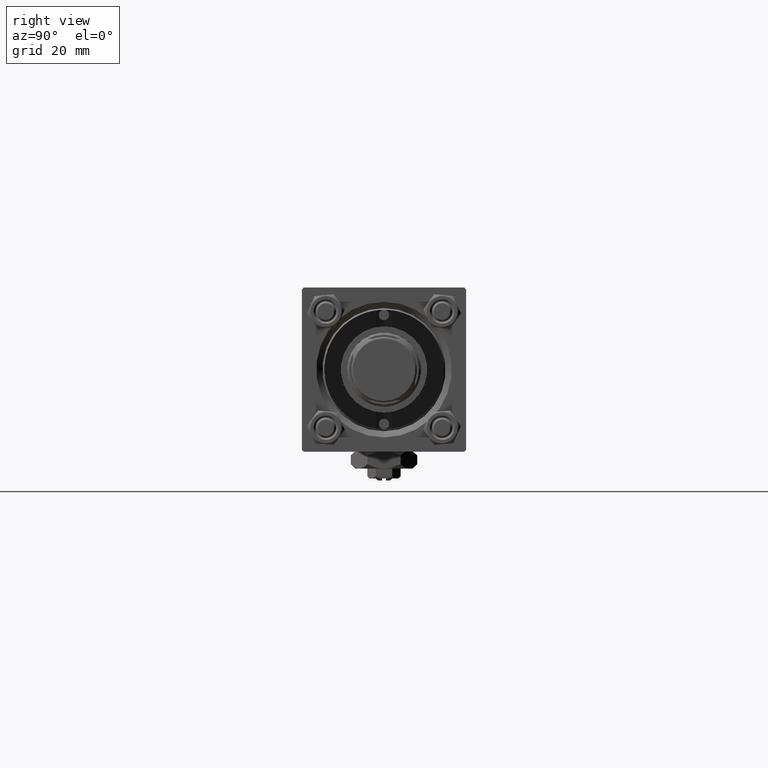
[diagram: clean part render]
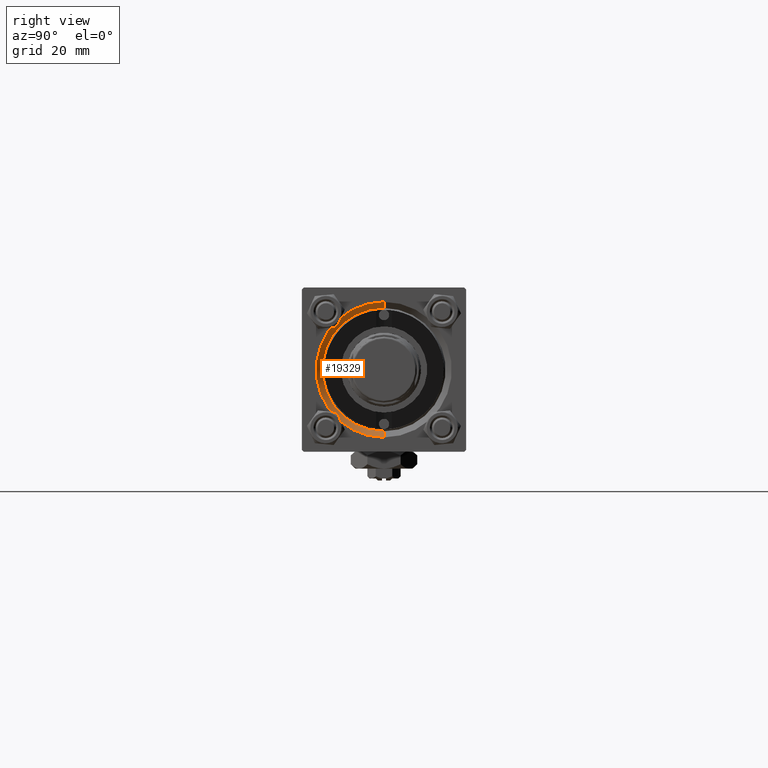
[diagram: same view with one face highlighted and labeled with its STEP entity id]
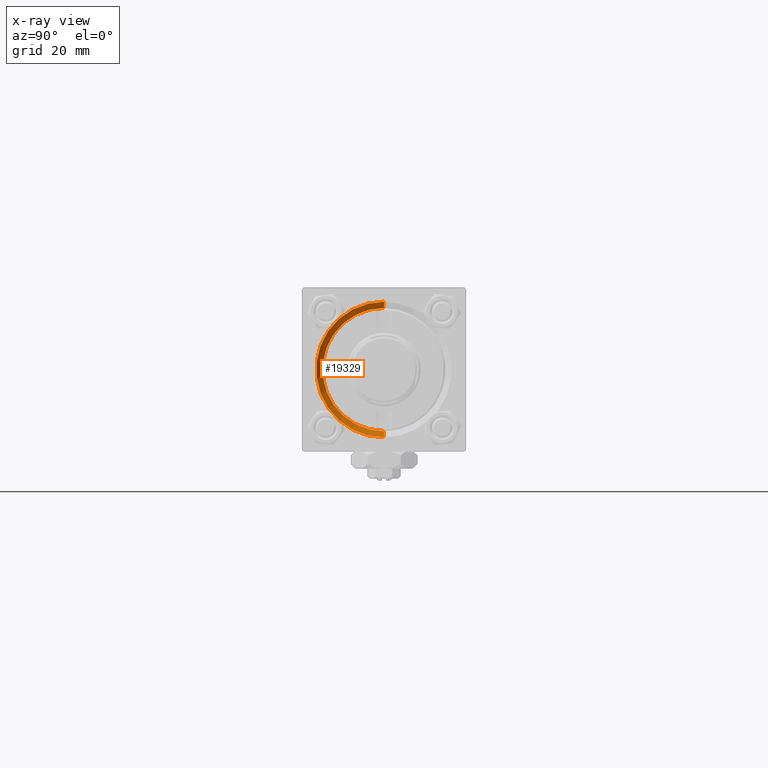
[diagram: x-ray of the same camera — body ghosted, the highlighted face saturated]
A machine part, right view. The second image highlights one B-rep face of the part: STEP entity #19329.
The next image is the same camera in x-ray: the body ghosted, the highlighted face saturated — about 0% of this face is hidden behind the body in this view.
In plain terms, the highlighted conical surface has half-angle 45 deg.
Its self-contained STEP definition (entity closure, byte-faithful):
#320 = VECTOR ( 'NONE', #49829, 1000.000000000000114 ) ;
#390 = DIRECTION ( 'NONE',  ( 0.000000000000000000, 0.000000000000000000, -1.000000000000000000 ) ) ;
#1395 = AXIS2_PLACEMENT_3D ( 'NONE', #11449, #38546, #10943 ) ;
#1450 = ORIENTED_EDGE ( 'NONE', *, *, #29486, .F. ) ;
#2423 = EDGE_CURVE ( 'NONE', #51019, #18339, #17730, .T. ) ;
#5670 = CARTESIAN_POINT ( 'NONE',  ( 117.5000000000000000, 0.000000000000000000, -15.00000000000000000 ) ) ;
#6304 = VECTOR ( 'NONE', #26192, 1000.000000000000114 ) ;
#7715 = ORIENTED_EDGE ( 'NONE', *, *, #33352, .F. ) ;
#8776 = CARTESIAN_POINT ( 'NONE',  ( 117.5000000000000000, 0.000000000000000000, 0.000000000000000000 ) ) ;
#10943 = DIRECTION ( 'NONE',  ( 0.000000000000000000, 0.000000000000000000, 1.000000000000000000 ) ) ;
#11449 = CARTESIAN_POINT ( 'NONE',  ( 117.5000000000000000, 0.000000000000000000, 0.000000000000000000 ) ) ;
#12484 = ORIENTED_EDGE ( 'NONE', *, *, #23657, .F. ) ;
#12881 = AXIS2_PLACEMENT_3D ( 'NONE', #25872, #46370, #22700 ) ;
#13237 = CARTESIAN_POINT ( 'NONE',  ( 119.0000000000000142, 0.000000000000000000, -16.50000000000001421 ) ) ;
#13293 = ORIENTED_EDGE ( 'NONE', *, *, #2423, .T. ) ;
#13518 = FACE_OUTER_BOUND ( 'NONE', #24551, .T. ) ;
#14338 = CARTESIAN_POINT ( 'NONE',  ( 117.5000000000000000, 0.000000000000000000, -15.00000000000000000 ) ) ;
#15361 = LINE ( 'NONE', #14338, #6304 ) ;
#15633 = CIRCLE ( 'NONE', #1395, 15.00000000000000000 ) ;
#17730 = LINE ( 'NONE', #33771, #320 ) ;
#18339 = VERTEX_POINT ( 'NONE', #40856 ) ;
#19329 = ADVANCED_FACE ( 'NONE', ( #13518 ), #49451, .F. ) ;
#21679 = DIRECTION ( 'NONE',  ( 1.000000000000000000, 0.000000000000000000, 0.000000000000000000 ) ) ;
#22700 = DIRECTION ( 'NONE',  ( 0.000000000000000000, 0.000000000000000000, 1.000000000000000000 ) ) ;
#23657 = EDGE_CURVE ( 'NONE', #26877, #18339, #48212, .T. ) ;
#24551 = EDGE_LOOP ( 'NONE', ( #7715, #13293, #12484, #1450 ) ) ;
#25872 = CARTESIAN_POINT ( 'NONE',  ( 119.0000000000000142, 0.000000000000000000, 0.000000000000000000 ) ) ;
#26192 = DIRECTION ( 'NONE',  ( 0.7071067811865474617, 0.000000000000000000, -0.7071067811865474617 ) ) ;
#26877 = VERTEX_POINT ( 'NONE', #13237 ) ;
#29486 = EDGE_CURVE ( 'NONE', #49952, #26877, #15361, .T. ) ;
#33352 = EDGE_CURVE ( 'NONE', #51019, #49952, #15633, .T. ) ;
#33771 = CARTESIAN_POINT ( 'NONE',  ( 117.5000000000000000, 1.836970198721029589E-15, 15.00000000000000000 ) ) ;
#38546 = DIRECTION ( 'NONE',  ( 1.000000000000000000, 0.000000000000000000, 0.000000000000000000 ) ) ;
#40856 = CARTESIAN_POINT ( 'NONE',  ( 119.0000000000000142, 2.020667218593134678E-15, 16.50000000000001421 ) ) ;
#43927 = CARTESIAN_POINT ( 'NONE',  ( 117.5000000000000000, 1.836970198721029589E-15, 15.00000000000000000 ) ) ;
#44110 = AXIS2_PLACEMENT_3D ( 'NONE', #8776, #21679, #390 ) ;
#46370 = DIRECTION ( 'NONE',  ( -1.000000000000000000, -0.000000000000000000, -0.000000000000000000 ) ) ;
#48212 = CIRCLE ( 'NONE', #12881, 16.50000000000001421 ) ;
#49451 = CONICAL_SURFACE ( 'NONE', #44110, 15.00000000000000000, 0.7853981633974482790 ) ;
#49829 = DIRECTION ( 'NONE',  ( 0.7071067811865474617, 8.659560562354932858E-17, 0.7071067811865474617 ) ) ;
#49952 = VERTEX_POINT ( 'NONE', #5670 ) ;
#51019 = VERTEX_POINT ( 'NONE', #43927 ) ;